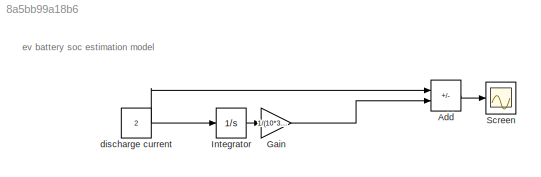
MODEL slx_8a5bb99a18b6
KIND model
CONFIG AbsTol = auto
CONFIG EnableMultiTasking = off
CONFIG FixedStep = auto
CONFIG MaxStep = auto
CONFIG MinStep = auto
CONFIG RelTol = 1e-3
CONFIG SampleTimeConstraint = Unconstrained
CONFIG SolverName = VariableStepAuto
CONFIG StartTime = 0.0
CONFIG StopTime = 3600
BLOCK [Sum] Add
  IconShape = rectangular
  Inputs = +-
BLOCK [Gain] Gain
  Gain = 1/(10*3600)
BLOCK [Integrator] Integrator
BLOCK [Scope] Screen
  ActiveDisplayYMaximum = 2.025
  ActiveDisplayYMinimum = 1.775
  ContainerLayout = {"WindowBounds":[1,1467,459,661]}
  Floating = off
  GraphicalSettings = {"Style":{"BackgroundColor":[0.12941176470588237,0.12941176470588237,0.12941176470588237],"AxesColor":[0.07058823529411765,0.07058823529411765,0.07058823529411765],"LabelsColor":[0.8509803921568627,0.8509803921568627,0.8509803921568627],"PreserveColors":false,"Visible":[true],"LineStyle":["-"],"LineWidth":[1.5],"BarWidth":[0.9],"LineColor":["auto"],"LineFaceAlpha":[1],"LineEdgeAlpha":[1],"Marker":...<+1894ch>
  MultipleDisplayCache = [{"MaxYLimMag":2.025,"MaxYLimReal":2.025,"MinYLimMag":1.775,"MinYLimReal":1.775,"PlotAsMagnitudePhase":false,"ShowGrid":true,"ShowLegend":false,"Title":"%<SignalLabel>","YLabel":""}]
  NumInputPorts = 1
  Visible = on
  WasSavedAsWebScope = on
  WindowPosition = [1.000000,3.000000,461.000000,663.000000,]
BLOCK [Constant] discharge current
  Value = 2
ANNOTATION (root): ev battery soc estimation model
LINE Add:1 -> Screen:1
LINE Gain:1 -> Add:2
LINE Integrator:1 -> Gain:1
NET discharge current:1 -> Add:1, Integrator:1
note: NET lines group one-source signal fan-out (src -> all destinations, sorted); 1:1 wires keep LINE
